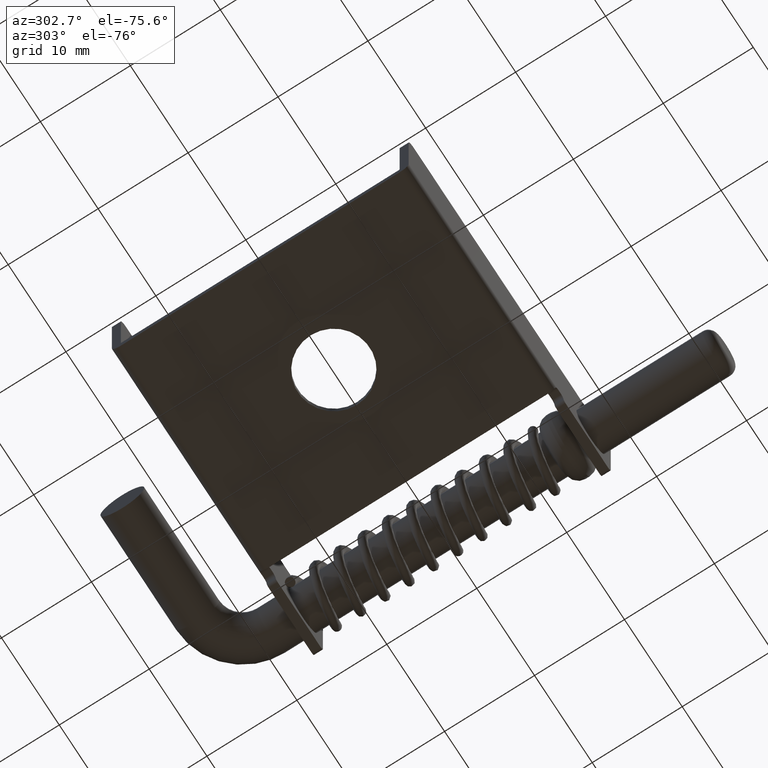
[diagram: clean part render]
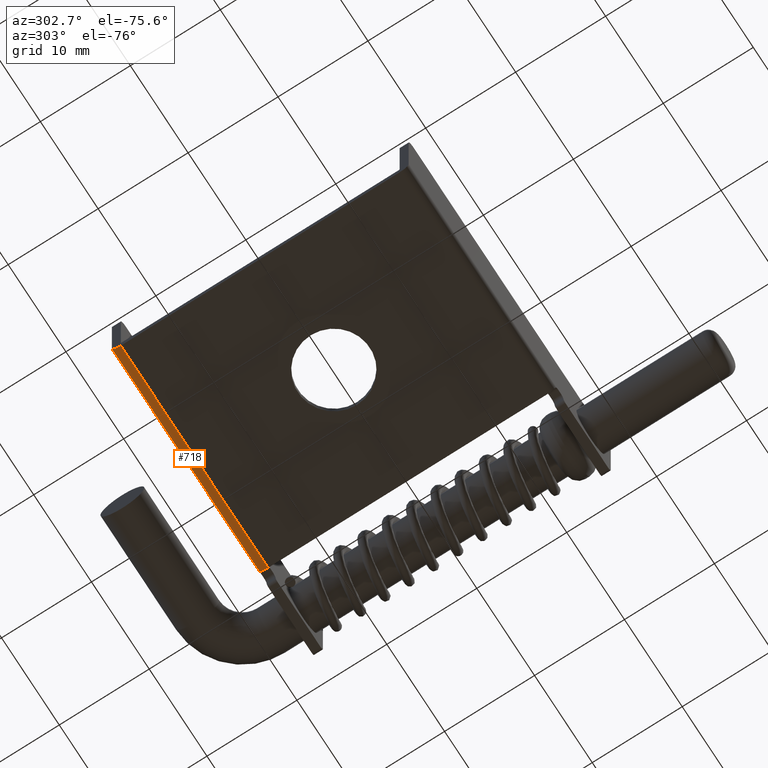
[diagram: same view with one face highlighted and labeled with its STEP entity id]
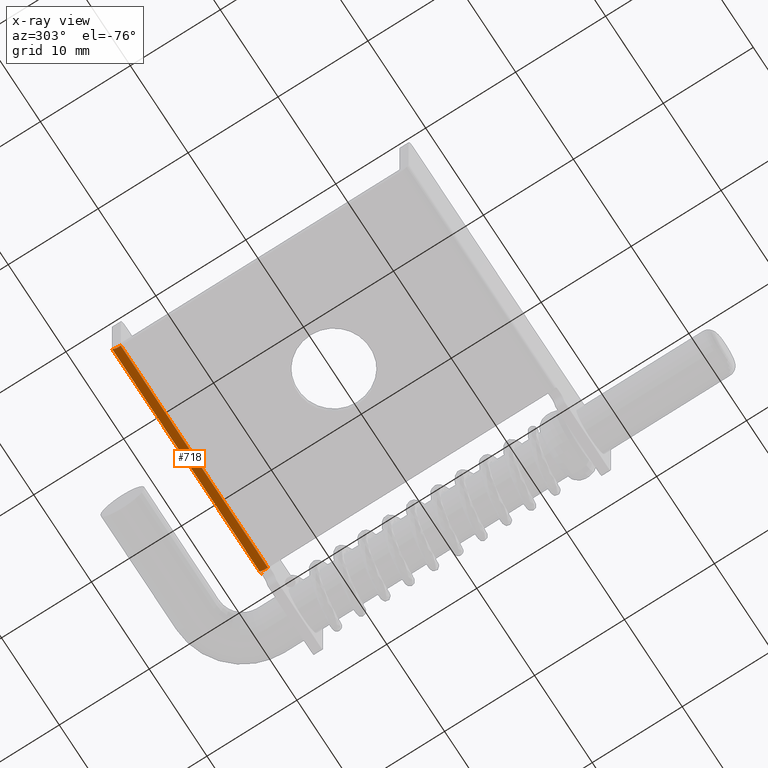
[diagram: x-ray of the same camera — body ghosted, the highlighted face saturated]
A machine part, auxiliary view. The second image highlights one B-rep face of the part: STEP entity #718.
The next image is the same camera in x-ray: the body ghosted, the highlighted face saturated — about 0% of this face is hidden behind the body in this view.
In plain terms, the highlighted cylindrical surface (edge-blend (fillet) strip) has radius 1 mm, axis along (-1, -0, 0).
Its self-contained STEP definition (entity closure, byte-faithful):
#44=B_SPLINE_CURVE_WITH_KNOTS('',3,(#1104,#1105,#1106,#1107,#1108,#1109,
#1110,#1111,#1112,#1113),.UNSPECIFIED.,.F.,.F.,(4,2,2,2,4),(0.189546105077369,
0.208412403984343,0.227278702891317,0.247250712548678,0.267222722206038),
 .UNSPECIFIED.);
#47=LINE('',#1102,#101);
#48=LINE('',#1116,#102);
#101=VECTOR('',#872,26.);
#102=VECTOR('',#875,25.5);
#174=FACE_OUTER_BOUND('',#222,.T.);
#222=EDGE_LOOP('',(#499,#500,#501,#502,#503));
#285=CIRCLE('',#773,1.);
#286=CIRCLE('',#774,1.);
#328=VERTEX_POINT('',#1098);
#329=VERTEX_POINT('',#1099);
#330=VERTEX_POINT('',#1101);
#331=VERTEX_POINT('',#1103);
#332=VERTEX_POINT('',#1114);
#399=EDGE_CURVE('',#328,#329,#285,.T.);
#400=EDGE_CURVE('',#329,#330,#47,.T.);
#401=EDGE_CURVE('',#330,#331,#44,.T.);
#402=EDGE_CURVE('',#331,#332,#286,.T.);
#403=EDGE_CURVE('',#332,#328,#48,.T.);
#499=ORIENTED_EDGE('',*,*,#399,.T.);
#500=ORIENTED_EDGE('',*,*,#400,.T.);
#501=ORIENTED_EDGE('',*,*,#401,.T.);
#502=ORIENTED_EDGE('',*,*,#402,.T.);
#503=ORIENTED_EDGE('',*,*,#403,.T.);
#697=CYLINDRICAL_SURFACE('',#772,1.);
#718=ADVANCED_FACE('',(#174),#697,.T.);
#772=AXIS2_PLACEMENT_3D('',#1097,#868,#869);
#773=AXIS2_PLACEMENT_3D('',#1100,#870,#871);
#774=AXIS2_PLACEMENT_3D('',#1115,#873,#874);
#868=DIRECTION('center_axis',(-1.,-6.34413156928661E-17,0.));
#869=DIRECTION('ref_axis',(0.,0.707106781186548,-0.707106781186547));
#870=DIRECTION('center_axis',(1.,3.36431219583381E-16,0.));
#871=DIRECTION('ref_axis',(0.,0.707106781186548,-0.707106781186547));
#872=DIRECTION('',(1.,6.34413156928661E-17,0.));
#873=DIRECTION('center_axis',(-1.,-2.86509167645202E-16,0.));
#874=DIRECTION('ref_axis',(0.,0.707106781186548,-0.707106781186547));
#875=DIRECTION('',(-1.,-6.34413156928661E-17,0.));
#1097=CARTESIAN_POINT('Origin',(8.75,15.5,1.));
#1098=CARTESIAN_POINT('',(-17.5,15.5,0.));
#1099=CARTESIAN_POINT('',(-17.5,16.5,1.));
#1100=CARTESIAN_POINT('Origin',(-17.5,15.5,1.));
#1101=CARTESIAN_POINT('',(8.49999999999999,16.5,1.));
#1102=CARTESIAN_POINT('',(8.75,16.5,1.));
#1103=CARTESIAN_POINT('',(7.99999999999999,16.3660254037844,0.5));
#1104=CARTESIAN_POINT('Ctrl Pts',(8.49999999999999,16.5,1.));
#1105=CARTESIAN_POINT('Ctrl Pts',(8.43711233697675,16.5,1.));
#1106=CARTESIAN_POINT('Ctrl Pts',(8.3700536372052,16.5002476240636,0.987404285024259));
#1107=CARTESIAN_POINT('Ctrl Pts',(8.24683061842658,16.498296436639,0.936296059469124));
#1108=CARTESIAN_POINT('Ctrl Pts',(8.19067323778673,16.4957660061388,0.897780018973282));
#1109=CARTESIAN_POINT('Ctrl Pts',(8.09962795920546,16.4822874153827,0.806734740392017));
#1110=CARTESIAN_POINT('Ctrl Pts',(8.06047108290823,16.4698527565504,0.747620189071961));
#1111=CARTESIAN_POINT('Ctrl Pts',(8.0107406787701,16.4285332180137,0.622990669316521));
#1112=CARTESIAN_POINT('Ctrl Pts',(7.99999999999999,16.3993120865467,0.557654225759673));
#1113=CARTESIAN_POINT('Ctrl Pts',(7.99999999999999,16.3660254037844,0.5));
#1114=CARTESIAN_POINT('',(7.99999999999999,15.5,0.));
#1115=CARTESIAN_POINT('Origin',(8.,15.5,1.));
#1116=CARTESIAN_POINT('',(8.75,15.5,0.));